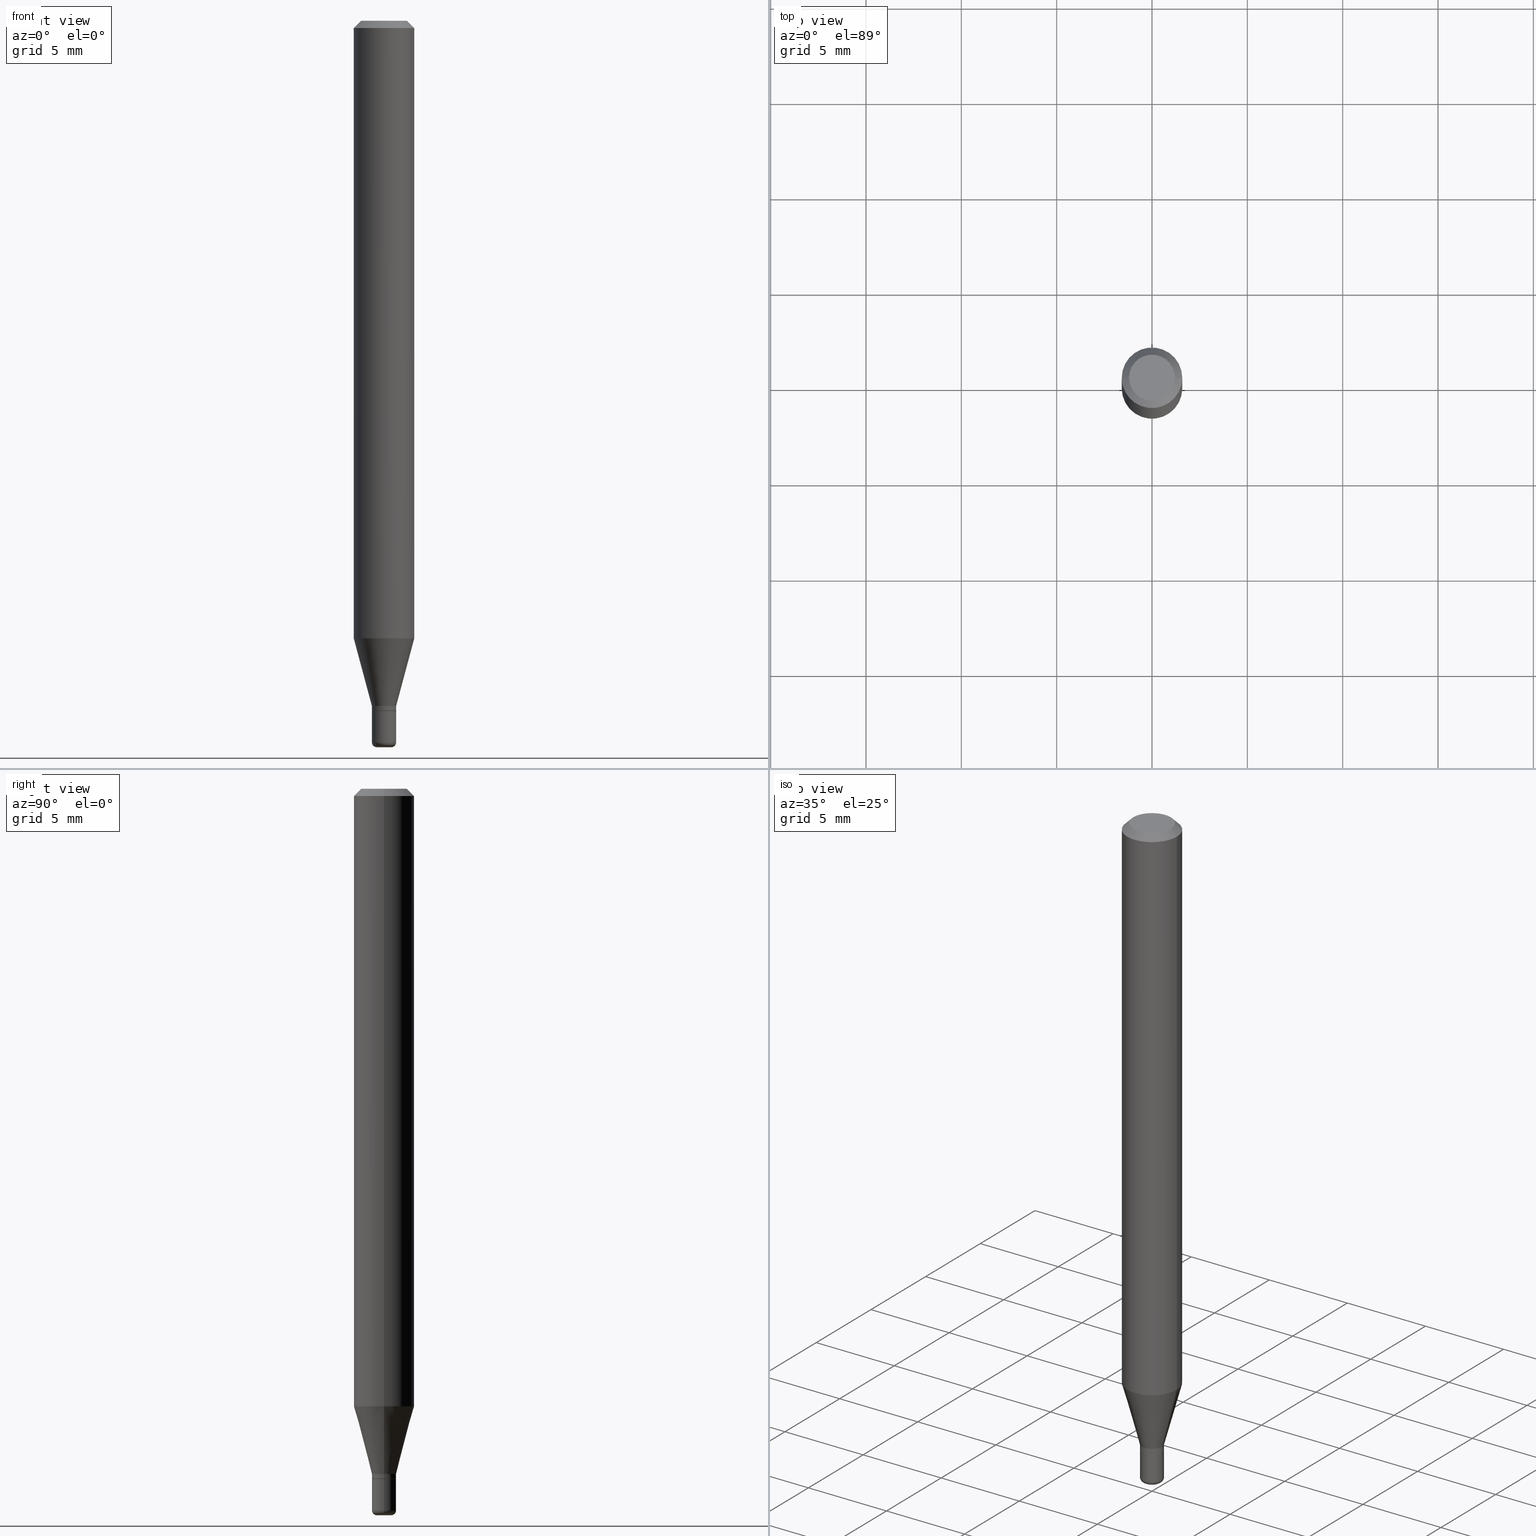
[diagram: canonical four-view strip — front | top / right | iso, engineering-drawing reading convention]
A machine part, canonical four-view strip (front | top / right | iso — engineering-drawing reading convention). The complete STEP part file that produces these views, byte-faithful:
ISO-10303-21;
HEADER;
FILE_DESCRIPTION (( 'STEP AP203' ),
    '1' );
FILE_NAME ('09008.STEP',
    '2024-02-29T21:14:19',
    ( '' ),
    ( '' ),
    'SwSTEP 2.0',
    'SolidWorks 2023',
    '' );
FILE_SCHEMA (( 'CONFIG_CONTROL_DESIGN' ));
ENDSEC;

DATA;
#1 = CC_DESIGN_APPROVAL ( #365, ( #337 ) ) ;
#2 = ORIENTED_EDGE ( 'NONE', *, *, #251, .T. ) ;
#3 = PERSON_AND_ORGANIZATION ( #484, #341 ) ;
#4 = VERTEX_POINT ( 'NONE', #347 ) ;
#5 = APPROVAL_DATE_TIME ( #298, #365 ) ;
#6 = CC_DESIGN_PERSON_AND_ORGANIZATION_ASSIGNMENT ( #444, #239, ( #450 ) ) ;
#7 = PRODUCT_DEFINITION_FORMATION_WITH_SPECIFIED_SOURCE ( 'ANY', '', #450, .NOT_KNOWN. ) ;
#8 = APPROVAL_ROLE ( '' ) ;
#9 = EDGE_CURVE ( 'NONE', #269, #255, #355, .T. ) ;
#10 = FACE_OUTER_BOUND ( 'NONE', #116, .T. ) ;
#11 = CIRCLE ( 'NONE', #481, 0.06250000000000000000 ) ;
#12 = APPROVAL_STATUS ( 'not_yet_approved' ) ;
#13 = PLANE ( 'NONE',  #240 ) ;
#14 = VERTEX_POINT ( 'NONE', #441 ) ;
#15 = PERSON_AND_ORGANIZATION ( #484, #341 ) ;
#16 = DIRECTION ( 'NONE',  ( 1.000000000000000000, -6.982962677686265922E-15, 4.876176775795935232E-29 ) ) ;
#17 = ORIENTED_EDGE ( 'NONE', *, *, #315, .T. ) ;
#18 = APPROVAL_ROLE ( '' ) ;
#19 = LINE ( 'NONE', #129, #404 ) ;
#20 = VERTEX_POINT ( 'NONE', #42 ) ;
#21 = EDGE_CURVE ( 'NONE', #20, #296, #406, .T. ) ;
#22 = DIRECTION ( 'NONE',  ( -2.445468806185136597E-29, 3.491481338843145583E-15, 1.000000000000000000 ) ) ;
#23 = CARTESIAN_POINT ( 'NONE',  ( 3.460338360751968441E-29, -4.940446094463050737E-15, -1.415000000000000036 ) ) ;
#24 = AXIS2_PLACEMENT_3D ( 'NONE', #495, #470, #349 ) ;
#25 = DIRECTION ( 'NONE',  ( -2.445468806185136597E-29, 3.491481338843145583E-15, 1.000000000000000000 ) ) ;
#26 = EDGE_LOOP ( 'NONE', ( #414, #110 ) ) ;
#27 = DIRECTION ( 'NONE',  ( 1.000000000000000000, -6.982962677686269866E-15, 4.883557194083113462E-29 ) ) ;
#28 = DIRECTION ( 'NONE',  ( 1.000000000000000000, -6.982962677686266711E-15, 4.852736867747365086E-29 ) ) ;
#29 = VERTEX_POINT ( 'NONE', #508 ) ;
#30 = CC_DESIGN_PERSON_AND_ORGANIZATION_ASSIGNMENT ( #15, #164, ( #7 ) ) ;
#31 = CARTESIAN_POINT ( 'NONE',  ( 0.06250000000000000000, -4.888073874380378612E-16, -0.01499999999999970281 ) ) ;
#32 = DIRECTION ( 'NONE',  ( -2.445468806185136597E-29, 3.491481338843145583E-15, 1.000000000000000000 ) ) ;
#33 = VERTEX_POINT ( 'NONE', #309 ) ;
#34 = DIRECTION ( 'NONE',  ( 0.7071067811865479058, -7.319954787623257623E-15, -0.7071067811865471286 ) ) ;
#35 = VECTOR ( 'NONE', #472, 39.37007874015748143 ) ;
#36 = EDGE_LOOP ( 'NONE', ( #518, #227 ) ) ;
#37 = ADVANCED_FACE ( 'NONE', ( #79 ), #159, .T. ) ;
#38 = APPLICATION_PROTOCOL_DEFINITION ( 'international standard', 'config_control_design', 1994, #150 ) ;
#39 = CARTESIAN_POINT ( 'NONE',  ( 3.484793048813820547E-29, -4.975360907851483175E-15, -1.425000000000000266 ) ) ;
#40 = ORIENTED_EDGE ( 'NONE', *, *, #9, .F. ) ;
#41 = MECHANICAL_CONTEXT ( 'NONE', #150, 'mechanical' ) ;
#42 = CARTESIAN_POINT ( 'NONE',  ( -0.06250000000000000000, -4.007717418978941084E-15, -1.275048094716166869 ) ) ;
#43 = ORIENTED_EDGE ( 'NONE', *, *, #377, .F. ) ;
#44 = APPLICATION_PROTOCOL_DEFINITION ( 'international standard', 'config_control_design', 1994, #506 ) ;
#45 = CIRCLE ( 'NONE', #442, 0.02499999999999994588 ) ;
#46 =( LENGTH_UNIT ( ) NAMED_UNIT ( * ) SI_UNIT ( $, .METRE. ) );
#47 = APPROVAL ( #331, 'UNSPECIFIED' ) ;
#48 =( NAMED_UNIT ( * ) PLANE_ANGLE_UNIT ( ) SI_UNIT ( $, .RADIAN. ) );
#49 = ADVANCED_FACE ( 'NONE', ( #512 ), #322, .T. ) ;
#50 = DIRECTION ( 'NONE',  ( 0.7071067811866199593, -2.468850131083015945E-15, 0.7071067811864750752 ) ) ;
#51 = TOROIDAL_SURFACE ( 'NONE', #380, 0.01500000000000000291, 0.009999999999999946432 ) ;
#52 = CARTESIAN_POINT ( 'NONE',  ( 3.668203209277632395E-31, -5.237222008264614861E-17, -0.01499999999999970281 ) ) ;
#53 = EDGE_LOOP ( 'NONE', ( #153, #196, #439, #345 ) ) ;
#54 = PERSON_AND_ORGANIZATION ( #484, #341 ) ;
#55 = CARTESIAN_POINT ( 'NONE',  ( 0.000000000000000000, 0.000000000000000000, 0.000000000000000000 ) ) ;
#56 = AXIS2_PLACEMENT_3D ( 'NONE', #236, #325, #485 ) ;
#57 = ORIENTED_EDGE ( 'NONE', *, *, #228, .T. ) ;
#58 = APPROVAL_DATE_TIME ( #491, #505 ) ;
#59 = DIRECTION ( 'NONE',  ( -2.445468806185136597E-29, 3.491481338843145583E-15, 1.000000000000000000 ) ) ;
#60 = EDGE_CURVE ( 'NONE', #348, #155, #420, .T. ) ;
#61 = CONICAL_SURFACE ( 'NONE', #343, 0.02499999999999998057, 0.2617993877991491858 ) ;
#62 = DIRECTION ( 'NONE',  ( 1.000000000000000000, -6.982962677686262766E-15, 0.000000000000000000 ) ) ;
#63 = CC_DESIGN_PERSON_AND_ORGANIZATION_ASSIGNMENT ( #367, #91, ( #337 ) ) ;
#64 = CARTESIAN_POINT ( 'NONE',  ( 3.483570314410727746E-29, -4.973615167182062460E-15, -1.424500000000000322 ) ) ;
#65 = ADVANCED_FACE ( 'NONE', ( #189 ), #313, .F. ) ;
#66 = DIRECTION ( 'NONE',  ( -2.445468806185136877E-29, 3.491481338843145188E-15, 1.000000000000000000 ) ) ;
#67 = DIRECTION ( 'NONE',  ( -2.445468806185136597E-29, 3.491481338843145583E-15, 1.000000000000000000 ) ) ;
#68 = CARTESIAN_POINT ( 'NONE',  ( 3.668203209277632395E-31, -5.237222008264614861E-17, -0.01499999999999970281 ) ) ;
#69 = ORIENTED_EDGE ( 'NONE', *, *, #245, .T. ) ;
#70 = CARTESIAN_POINT ( 'NONE',  ( -0.06250000000000000000, 4.440892098500626162E-16, -3.074334431409316114E-30 ) ) ;
#71 = ORIENTED_EDGE ( 'NONE', *, *, #288, .T. ) ;
#72 = ORIENTED_EDGE ( 'NONE', *, *, #361, .T. ) ;
#73 = AXIS2_PLACEMENT_3D ( 'NONE', #39, #469, #471 ) ;
#74 = DIRECTION ( 'NONE',  ( -0.7071067811865479058, 2.468850131082261005E-15, -0.7071067811865471286 ) ) ;
#75 = EDGE_LOOP ( 'NONE', ( #275, #443, #467, #473 ) ) ;
#76 = DIRECTION ( 'NONE',  ( 1.000000000000000000, -6.982962677686282488E-15, 0.000000000000000000 ) ) ;
#77 = DIMENSIONAL_EXPONENTS ( 1.000000000000000000, 0.000000000000000000, 0.000000000000000000, 0.000000000000000000, 0.000000000000000000, 0.000000000000000000, 0.000000000000000000 ) ;
#78 = AXIS2_PLACEMENT_3D ( 'NONE', #374, #332, #217 ) ;
#79 = FACE_OUTER_BOUND ( 'NONE', #53, .T. ) ;
#80 = CARTESIAN_POINT ( 'NONE',  ( 0.000000000000000000, 0.000000000000000000, 0.000000000000000000 ) ) ;
#81 = ORIENTED_EDGE ( 'NONE', *, *, #449, .T. ) ;
#82 = AXIS2_PLACEMENT_3D ( 'NONE', #68, #151, #389 ) ;
#83 = CARTESIAN_POINT ( 'NONE',  ( 3.668203209277704895E-29, -5.237222008264718177E-15, -1.500000000000000222 ) ) ;
#84 = EDGE_CURVE ( 'NONE', #348, #204, #113, .T. ) ;
#85 = CC_DESIGN_DATE_AND_TIME_ASSIGNMENT ( #489, #411, ( #130 ) ) ;
#86 = ORIENTED_EDGE ( 'NONE', *, *, #312, .F. ) ;
#87 = DIRECTION ( 'NONE',  ( -2.445468806185136877E-29, 3.491481338843145188E-15, 1.000000000000000000 ) ) ;
#88 = ADVANCED_FACE ( 'NONE', ( #515 ), #310, .T. ) ;
#89 = CARTESIAN_POINT ( 'NONE',  ( -0.06250000000000000000, -1.808000214605762576E-15, -0.01499999999999970281 ) ) ;
#90 = ORIENTED_EDGE ( 'NONE', *, *, #423, .T. ) ;
#91 = PERSON_AND_ORGANIZATION_ROLE ( 'creator' ) ;
#92 = CARTESIAN_POINT ( 'NONE',  ( -0.02499999999999997363, -4.795979483242037256E-15, -1.424500000000000322 ) ) ;
#93 = ORIENTED_EDGE ( 'NONE', *, *, #231, .F. ) ;
#94 = DATE_TIME_ROLE ( 'creation_date' ) ;
#95 = CARTESIAN_POINT ( 'NONE',  ( 0.04750000000000000749, -4.035134999187568762E-16, 2.731847993664288856E-16 ) ) ;
#96 = ORIENTED_EDGE ( 'NONE', *, *, #251, .F. ) ;
#97 = CARTESIAN_POINT ( 'NONE',  ( 3.118090342014177952E-29, -4.451806628829005278E-15, -1.275048094716166869 ) ) ;
#98 = DATE_AND_TIME ( #334, #333 ) ;
#99 = DIRECTION ( 'NONE',  ( -2.445468806185136597E-29, 3.491481338843145583E-15, 1.000000000000000000 ) ) ;
#100 = EDGE_CURVE ( 'NONE', #155, #348, #149, .T. ) ;
#101 = AXIS2_PLACEMENT_3D ( 'NONE', #319, #201, #405 ) ;
#102 = CARTESIAN_POINT ( 'NONE',  ( 0.02499999999999997363, -1.745740669421564705E-16, 1.219044193948982547E-30 ) ) ;
#103 = EDGE_CURVE ( 'NONE', #4, #29, #304, .T. ) ;
#104 = DIRECTION ( 'NONE',  ( 1.000000000000000000, -6.982962677686282488E-15, 0.000000000000000000 ) ) ;
#105 = CARTESIAN_POINT ( 'NONE',  ( 3.483570314410727746E-29, -4.973615167182062460E-15, -1.424500000000000322 ) ) ;
#106 = ORIENTED_EDGE ( 'NONE', *, *, #100, .F. ) ;
#107 = CC_DESIGN_APPROVAL ( #505, ( #130 ) ) ;
#108 = CARTESIAN_POINT ( 'NONE',  ( 0.02499999999999997710, -1.745740669421564952E-16, 1.219044193948982897E-30 ) ) ;
#109 = ORIENTED_EDGE ( 'NONE', *, *, #157, .T. ) ;
#110 = ORIENTED_EDGE ( 'NONE', *, *, #474, .F. ) ;
#111 = CARTESIAN_POINT ( 'NONE',  ( 3.484793048813820547E-29, -4.975360907851483175E-15, -1.425000000000000266 ) ) ;
#112 = EDGE_CURVE ( 'NONE', #33, #352, #131, .T. ) ;
#113 = LINE ( 'NONE', #438, #247 ) ;
#114 = FACE_OUTER_BOUND ( 'NONE', #279, .T. ) ;
#115 = VECTOR ( 'NONE', #34, 39.37007874015748143 ) ;
#116 = EDGE_LOOP ( 'NONE', ( #418, #69, #93, #401 ) ) ;
#117 = ORIENTED_EDGE ( 'NONE', *, *, #286, .T. ) ;
#118 = APPROVAL_PERSON_ORGANIZATION ( #3, #365, #18 ) ;
#119 = CARTESIAN_POINT ( 'NONE',  ( 3.484793048813820547E-29, -4.975360907851483175E-15, -1.425000000000000266 ) ) ;
#120 = DIRECTION ( 'NONE',  ( 1.000000000000000000, 0.000000000000000000, 0.000000000000000000 ) ) ;
#121 = ORIENTED_EDGE ( 'NONE', *, *, #125, .F. ) ;
#122 = DIRECTION ( 'NONE',  ( 7.105427357601001859E-15, 1.000000000000000000, -3.491481338843145583E-15 ) ) ;
#123 = CC_DESIGN_DATE_AND_TIME_ASSIGNMENT ( #135, #94, ( #337 ) ) ;
#124 =( CONVERSION_BASED_UNIT ( 'INCH', #397 ) LENGTH_UNIT ( ) NAMED_UNIT ( #77 ) );
#125 = EDGE_CURVE ( 'NONE', #33, #291, #422, .T. ) ;
#126 = DIRECTION ( 'NONE',  ( 1.000000000000000000, -6.982962677686266711E-15, 0.000000000000000000 ) ) ;
#127 = MANIFOLD_SOLID_BREP ( 'Body-Move/Copy2[2]', #494 ) ;
#128 = CYLINDRICAL_SURFACE ( 'NONE', #203, 0.02499999999999997710 ) ;
#129 = CARTESIAN_POINT ( 'NONE',  ( -0.02499999999999998057, -4.762810410523025533E-15, -1.415000000000000036 ) ) ;
#130 = SECURITY_CLASSIFICATION ( '', '', #451 ) ;
#131 = CIRCLE ( 'NONE', #78, 0.02449999999999996972 ) ;
#132 = CALENDAR_DATE ( 2024, 29, 2 ) ;
#133 = ORIENTED_EDGE ( 'NONE', *, *, #504, .F. ) ;
#134 = FACE_OUTER_BOUND ( 'NONE', #163, .T. ) ;
#135 = DATE_AND_TIME ( #258, #410 ) ;
#136 = ADVANCED_FACE ( 'NONE', ( #206 ), #462, .T. ) ;
#137 = CARTESIAN_POINT ( 'NONE',  ( 0.01500000000000000291, -5.307051635041582264E-15, -1.490000000000000213 ) ) ;
#138 = DIRECTION ( 'NONE',  ( 1.000000000000000000, -6.982962677686254878E-15, 0.000000000000000000 ) ) ;
#139 = ADVANCED_FACE ( 'NONE', ( #214 ), #447, .T. ) ;
#140 = CONICAL_SURFACE ( 'NONE', #215, 0.02449999999999996972, 0.7853981633975507526 ) ;
#141 = CYLINDRICAL_SURFACE ( 'NONE', #368, 0.06250000000000000000 ) ;
#142 = ORIENTED_EDGE ( 'NONE', *, *, #504, .T. ) ;
#143 = LINE ( 'NONE', #70, #208 ) ;
#144 = ORIENTED_EDGE ( 'NONE', *, *, #125, .T. ) ;
#145 = DIRECTION ( 'NONE',  ( -2.445468806185136877E-29, 3.491481338843145188E-15, 1.000000000000000000 ) ) ;
#146 = EDGE_LOOP ( 'NONE', ( #72, #142, #375, #224 ) ) ;
#147 = CIRCLE ( 'NONE', #351, 0.02499999999999998057 ) ;
#148 = CYLINDRICAL_SURFACE ( 'NONE', #476, 0.02499999999999997710 ) ;
#149 = CIRCLE ( 'NONE', #234, 0.04750000000000000749 ) ;
#150 = APPLICATION_CONTEXT ( 'configuration controlled 3d designs of mechanical parts and assemblies' ) ;
#151 = DIRECTION ( 'NONE',  ( 2.445468806185136597E-29, -3.491481338843145583E-15, -1.000000000000000000 ) ) ;
#152 = CARTESIAN_POINT ( 'NONE',  ( 0.02499999999999998057, -5.115020161405207405E-15, -1.415000000000000036 ) ) ;
#153 = ORIENTED_EDGE ( 'NONE', *, *, #231, .T. ) ;
#154 = DIRECTION ( 'NONE',  ( 2.445468806185136597E-29, -3.491481338843145583E-15, -1.000000000000000000 ) ) ;
#155 = VERTEX_POINT ( 'NONE', #95 ) ;
#156 = DIRECTION ( 'NONE',  ( -2.445468806185136597E-29, 3.491481338843145583E-15, 1.000000000000000000 ) ) ;
#157 = EDGE_CURVE ( 'NONE', #392, #204, #478, .T. ) ;
#158 = DIRECTION ( 'NONE',  ( -2.445468806185136597E-29, 3.491481338843145583E-15, 1.000000000000000000 ) ) ;
#159 = CYLINDRICAL_SURFACE ( 'NONE', #56, 0.06250000000000000000 ) ;
#160 = PLANE ( 'NONE',  #280 ) ;
#161 = UNCERTAINTY_MEASURE_WITH_UNIT (LENGTH_MEASURE( 1.000000000000000082E-05 ), #124, 'distance_accuracy_value', 'NONE');
#162 =( NAMED_UNIT ( * ) SI_UNIT ( $, .STERADIAN. ) SOLID_ANGLE_UNIT ( ) );
#163 = EDGE_LOOP ( 'NONE', ( #133, #17, #71, #43 ) ) ;
#164 = PERSON_AND_ORGANIZATION_ROLE ( 'creator' ) ;
#165 = ADVANCED_FACE ( 'NONE', ( #10 ), #61, .T. ) ;
#166 = CIRCLE ( 'NONE', #262, 0.01500000000000000465 ) ;
#167 = EDGE_LOOP ( 'NONE', ( #185, #316, #330, #277 ) ) ;
#168 = VERTEX_POINT ( 'NONE', #487 ) ;
#169 = DIRECTION ( 'NONE',  ( -2.445468806185136597E-29, 3.491481338843145583E-15, 1.000000000000000000 ) ) ;
#170 = CIRCLE ( 'NONE', #225, 0.02499999999999998057 ) ;
#171 = PERSON_AND_ORGANIZATION_ROLE ( 'classification_officer' ) ;
#172 = AXIS2_PLACEMENT_3D ( 'NONE', #200, #32, #230 ) ;
#173 = CARTESIAN_POINT ( 'NONE',  ( 3.582686580359766038E-29, -5.359686688179453325E-15, -1.500000000000000222 ) ) ;
#174 = EDGE_LOOP ( 'NONE', ( #492, #435, #372, #96 ) ) ;
#175 = PERSON_AND_ORGANIZATION_ROLE ( 'design_supplier' ) ;
#176 = CARTESIAN_POINT ( 'NONE',  ( 3.668203209277632395E-31, -5.237222008264614861E-17, -0.01499999999999970281 ) ) ;
#177 = APPROVAL_DATE_TIME ( #98, #47 ) ;
#178 = CARTESIAN_POINT ( 'NONE',  ( 0.02449999999999996972, -5.146443493454796836E-15, -1.425000000000000266 ) ) ;
#179 = DIRECTION ( 'NONE',  ( -2.445468806185136597E-29, 3.491481338843145583E-15, 1.000000000000000000 ) ) ;
#180 = AXIS2_PLACEMENT_3D ( 'NONE', #195, #398, #28 ) ;
#181 = PRODUCT_DEFINITION_SHAPE ( 'NONE', 'NONE',  #337 ) ;
#182 = ADVANCED_BREP_SHAPE_REPRESENTATION ( '09008', ( #302, #127, #221 ), #510 ) ;
#183 = CIRCLE ( 'NONE', #249, 0.02499999999999994588 ) ;
#184 = CARTESIAN_POINT ( 'NONE',  ( 0.000000000000000000, 0.000000000000000000, 0.000000000000000000 ) ) ;
#185 = ORIENTED_EDGE ( 'NONE', *, *, #488, .F. ) ;
#186 = CIRCLE ( 'NONE', #446, 0.02449999999999996972 ) ;
#187 = CARTESIAN_POINT ( 'NONE',  ( 3.643748521215853910E-29, -5.202307194876288105E-15, -1.490000000000000213 ) ) ;
#188 = CARTESIAN_POINT ( 'NONE',  ( 0.06250000000000000000, -4.364351673553916694E-16, 3.047610484872459871E-30 ) ) ;
#189 = FACE_OUTER_BOUND ( 'NONE', #36, .T. ) ;
#190 = ADVANCED_FACE ( 'NONE', ( #134 ), #128, .T. ) ;
#191 = DIRECTION ( 'NONE',  ( 1.000000000000000000, -6.982962677686261977E-15, 0.000000000000000000 ) ) ;
#192 = ORIENTED_EDGE ( 'NONE', *, *, #488, .T. ) ;
#193 = VECTOR ( 'NONE', #448, 39.37007874015748143 ) ;
#194 = DIRECTION ( 'NONE',  ( -2.445468806185136877E-29, 3.491481338843145188E-15, 1.000000000000000000 ) ) ;
#195 = CARTESIAN_POINT ( 'NONE',  ( -6.680649051745406845E-45, 9.538196290434862081E-31, 2.731847993664263218E-16 ) ) ;
#196 = ORIENTED_EDGE ( 'NONE', *, *, #381, .T. ) ;
#197 = FACE_OUTER_BOUND ( 'NONE', #295, .T. ) ;
#198 = DIRECTION ( 'NONE',  ( -1.000000000000000000, 6.982962677686266711E-15, 0.000000000000000000 ) ) ;
#199 = CARTESIAN_POINT ( 'NONE',  ( 3.316907271900976589E-16, 0.04750000000000000749, -2.925296391183627249E-17 ) ) ;
#200 = CARTESIAN_POINT ( 'NONE',  ( 3.118090342014177952E-29, -4.451806628829005278E-15, -1.275048094716166869 ) ) ;
#201 = DIRECTION ( 'NONE',  ( -2.445468806185136597E-29, 3.491481338843145583E-15, 1.000000000000000000 ) ) ;
#202 = LOCAL_TIME ( 16, 14, 19.00000000000000000, #292 ) ;
#203 = AXIS2_PLACEMENT_3D ( 'NONE', #454, #210, #370 ) ;
#204 = VERTEX_POINT ( 'NONE', #89 ) ;
#205 = VERTEX_POINT ( 'NONE', #261 ) ;
#206 = FACE_OUTER_BOUND ( 'NONE', #167, .T. ) ;
#207 = CIRCLE ( 'NONE', #387, 0.009999999999999944697 ) ;
#208 = VECTOR ( 'NONE', #66, 39.37007874015748143 ) ;
#209 = CALENDAR_DATE ( 2024, 29, 2 ) ;
#210 = DIRECTION ( 'NONE',  ( -2.445468806185136597E-29, 3.491481338843145583E-15, 1.000000000000000000 ) ) ;
#211 = PERSON_AND_ORGANIZATION ( #484, #341 ) ;
#212 = DIRECTION ( 'NONE',  ( 1.000000000000000000, -6.982962677686269866E-15, 4.883557194083113462E-29 ) ) ;
#213 = ORIENTED_EDGE ( 'NONE', *, *, #84, .F. ) ;
#214 = FACE_OUTER_BOUND ( 'NONE', #75, .T. ) ;
#215 = AXIS2_PLACEMENT_3D ( 'NONE', #482, #156, #76 ) ;
#216 = CIRCLE ( 'NONE', #320, 0.009999999999999944697 ) ;
#217 = DIRECTION ( 'NONE',  ( 1.000000000000000000, -6.982962677686282488E-15, 0.000000000000000000 ) ) ;
#218 = ADVANCED_FACE ( 'NONE', ( #297 ), #293, .T. ) ;
#219 = LINE ( 'NONE', #305, #115 ) ;
#220 = CARTESIAN_POINT ( 'NONE',  ( 0.000000000000000000, 0.000000000000000000, 0.000000000000000000 ) ) ;
#221 = AXIS2_PLACEMENT_3D ( 'NONE', #80, #400, #120 ) ;
#222 = LINE ( 'NONE', #108, #376 ) ;
#223 = ORIENTED_EDGE ( 'NONE', *, *, #361, .F. ) ;
#224 = ORIENTED_EDGE ( 'NONE', *, *, #288, .F. ) ;
#225 = AXIS2_PLACEMENT_3D ( 'NONE', #299, #338, #327 ) ;
#226 = CARTESIAN_POINT ( 'NONE',  ( -0.02449999999999996972, -4.798628710416148457E-15, -1.425000000000000266 ) ) ;
#227 = ORIENTED_EDGE ( 'NONE', *, *, #399, .F. ) ;
#228 = EDGE_CURVE ( 'NONE', #4, #14, #216, .T. ) ;
#229 = FACE_OUTER_BOUND ( 'NONE', #317, .T. ) ;
#230 = DIRECTION ( 'NONE',  ( 1.000000000000000000, -6.982962677686262766E-15, 0.000000000000000000 ) ) ;
#231 = EDGE_CURVE ( 'NONE', #296, #20, #11, .T. ) ;
#232 = LOCAL_TIME ( 16, 14, 19.00000000000000000, #373 ) ;
#233 = CARTESIAN_POINT ( 'NONE',  ( -0.02449999999999996972, -4.801277937590258869E-15, -1.425000000000000266 ) ) ;
#234 = AXIS2_PLACEMENT_3D ( 'NONE', #356, #158, #259 ) ;
#235 = CONICAL_SURFACE ( 'NONE', #24, 0.02499999999999998057, 0.2617993877991491858 ) ;
#236 = CARTESIAN_POINT ( 'NONE',  ( 0.000000000000000000, 0.000000000000000000, 0.000000000000000000 ) ) ;
#237 = LINE ( 'NONE', #440, #464 ) ;
#238 = VERTEX_POINT ( 'NONE', #92 ) ;
#239 = PERSON_AND_ORGANIZATION_ROLE ( 'design_owner' ) ;
#240 = AXIS2_PLACEMENT_3D ( 'NONE', #173, #329, #457 ) ;
#241 = VECTOR ( 'NONE', #194, 39.37007874015748143 ) ;
#242 = ORIENTED_EDGE ( 'NONE', *, *, #21, .F. ) ;
#243 = CIRCLE ( 'NONE', #378, 0.02499999999999997363 ) ;
#244 = CIRCLE ( 'NONE', #425, 0.02500000000000000139 ) ;
#245 = EDGE_CURVE ( 'NONE', #433, #20, #19, .T. ) ;
#246 = EDGE_CURVE ( 'NONE', #168, #433, #170, .T. ) ;
#247 = VECTOR ( 'NONE', #74, 39.37007874015748143 ) ;
#248 = DIRECTION ( 'NONE',  ( 1.000000000000000000, -6.982962677686274599E-15, 0.000000000000000000 ) ) ;
#249 = AXIS2_PLACEMENT_3D ( 'NONE', #308, #346, #385 ) ;
#250 = SHAPE_DEFINITION_REPRESENTATION ( #181, #182 ) ;
#251 = EDGE_CURVE ( 'NONE', #204, #392, #461, .T. ) ;
#252 = CARTESIAN_POINT ( 'NONE',  ( -0.02500000000000000139, -4.911198367423860436E-15, -1.425000000000000266 ) ) ;
#253 = CIRCLE ( 'NONE', #403, 0.02499999999999997363 ) ;
#254 = AXIS2_PLACEMENT_3D ( 'NONE', #52, #99, #379 ) ;
#255 = VERTEX_POINT ( 'NONE', #252 ) ;
#256 = COORDINATED_UNIVERSAL_TIME_OFFSET ( 5, 0, .BEHIND. ) ;
#257 = CARTESIAN_POINT ( 'NONE',  ( 3.643748521215853910E-29, -5.202307194876288105E-15, -1.490000000000000213 ) ) ;
#258 = CALENDAR_DATE ( 2024, 29, 2 ) ;
#259 = DIRECTION ( 'NONE',  ( 1.000000000000000000, -6.982962677686266711E-15, 4.852736867747365086E-29 ) ) ;
#260 = APPROVAL_ROLE ( '' ) ;
#261 = CARTESIAN_POINT ( 'NONE',  ( -0.02499999999999994588, -4.911198367423860436E-15, -1.490000000000000213 ) ) ;
#262 = AXIS2_PLACEMENT_3D ( 'NONE', #83, #475, #285 ) ;
#263 = ADVANCED_FACE ( 'NONE', ( #371 ), #13, .F. ) ;
#264 = DIRECTION ( 'NONE',  ( 1.000000000000000000, -6.982962677686265922E-15, 4.876176775795935793E-29 ) ) ;
#265 = ORIENTED_EDGE ( 'NONE', *, *, #384, .F. ) ;
#266 = CARTESIAN_POINT ( 'NONE',  ( 3.484793048813820547E-29, -4.975360907851483175E-15, -1.425000000000000266 ) ) ;
#267 = CLOSED_SHELL ( 'NONE', ( #139, #218, #417, #136, #342, #263 ) ) ;
#268 = DIRECTION ( 'NONE',  ( 2.438088387897960049E-29, -3.491481338843145188E-15, -1.000000000000000000 ) ) ;
#269 = VERTEX_POINT ( 'NONE', #490 ) ;
#270 = ORIENTED_EDGE ( 'NONE', *, *, #426, .T. ) ;
#271 = DIRECTION ( 'NONE',  ( -2.445468806185136597E-29, 3.491481338843145583E-15, 1.000000000000000000 ) ) ;
#272 = EDGE_LOOP ( 'NONE', ( #458, #81, #223, #121 ) ) ;
#273 = ORIENTED_EDGE ( 'NONE', *, *, #449, .F. ) ;
#274 = DIRECTION ( 'NONE',  ( -2.445468806185136597E-29, 3.491481338843145583E-15, 1.000000000000000000 ) ) ;
#275 = ORIENTED_EDGE ( 'NONE', *, *, #103, .T. ) ;
#276 = ORIENTED_EDGE ( 'NONE', *, *, #100, .T. ) ;
#277 = ORIENTED_EDGE ( 'NONE', *, *, #340, .F. ) ;
#278 = ORIENTED_EDGE ( 'NONE', *, *, #315, .F. ) ;
#279 = EDGE_LOOP ( 'NONE', ( #408, #276 ) ) ;
#280 = AXIS2_PLACEMENT_3D ( 'NONE', #199, #354, #402 ) ;
#281 = AXIS2_PLACEMENT_3D ( 'NONE', #413, #169, #493 ) ;
#282 = DIRECTION ( 'NONE',  ( -2.445468806185136877E-29, 3.491481338843145188E-15, 1.000000000000000000 ) ) ;
#283 = DIRECTION ( 'NONE',  ( -2.445468806185136597E-29, 3.491481338843145583E-15, 1.000000000000000000 ) ) ;
#284 = ORIENTED_EDGE ( 'NONE', *, *, #60, .F. ) ;
#285 = DIRECTION ( 'NONE',  ( 1.000000000000000000, -6.982962677686265922E-15, 0.000000000000000000 ) ) ;
#286 = EDGE_CURVE ( 'NONE', #155, #392, #219, .T. ) ;
#287 = LINE ( 'NONE', #233, #35 ) ;
#288 = EDGE_CURVE ( 'NONE', #291, #168, #222, .T. ) ;
#289 = CARTESIAN_POINT ( 'NONE',  ( 0.000000000000000000, 0.000000000000000000, 0.000000000000000000 ) ) ;
#290 = DIRECTION ( 'NONE',  ( -2.445468806185136597E-29, 3.491481338843145583E-15, 1.000000000000000000 ) ) ;
#291 = VERTEX_POINT ( 'NONE', #468 ) ;
#292 = COORDINATED_UNIVERSAL_TIME_OFFSET ( 5, 0, .BEHIND. ) ;
#293 = CYLINDRICAL_SURFACE ( 'NONE', #511, 0.02499999999999997363 ) ;
#294 = LOCAL_TIME ( 16, 14, 19.00000000000000000, #366 ) ;
#295 = EDGE_LOOP ( 'NONE', ( #273, #436, #144, #278 ) ) ;
#296 = VERTEX_POINT ( 'NONE', #463 ) ;
#297 = FACE_OUTER_BOUND ( 'NONE', #307, .T. ) ;
#298 = DATE_AND_TIME ( #132, #294 ) ;
#299 = CARTESIAN_POINT ( 'NONE',  ( 3.460338360751968441E-29, -4.940446094463050737E-15, -1.415000000000000036 ) ) ;
#300 = EDGE_CURVE ( 'NONE', #296, #392, #466, .T. ) ;
#301 = DIRECTION ( 'NONE',  ( -2.445468806185136597E-29, 3.491481338843145583E-15, 1.000000000000000000 ) ) ;
#302 = MANIFOLD_SOLID_BREP ( 'Body-Move/Copy2[1]', #267 ) ;
#303 = CC_DESIGN_SECURITY_CLASSIFICATION ( #130, ( #7 ) ) ;
#304 = CIRCLE ( 'NONE', #281, 0.01500000000000000465 ) ;
#305 = CARTESIAN_POINT ( 'NONE',  ( 0.06250000000000000000, -4.811533449433669144E-16, -0.01499999999999970281 ) ) ;
#306 = FACE_OUTER_BOUND ( 'NONE', #146, .T. ) ;
#307 = EDGE_LOOP ( 'NONE', ( #90, #192, #40, #265 ) ) ;
#308 = CARTESIAN_POINT ( 'NONE',  ( 3.643748521215853910E-29, -5.202307194876288105E-15, -1.490000000000000213 ) ) ;
#309 = CARTESIAN_POINT ( 'NONE',  ( 0.02449999999999996972, -5.146443493454796836E-15, -1.425000000000000266 ) ) ;
#310 = CONICAL_SURFACE ( 'NONE', #364, 0.06250000000000000000, 0.7853981633974488341 ) ;
#311 = DIRECTION ( 'NONE',  ( -2.445468806185136597E-29, 3.491481338843145583E-15, 1.000000000000000000 ) ) ;
#312 = EDGE_CURVE ( 'NONE', #205, #14, #183, .T. ) ;
#313 = PLANE ( 'NONE',  #73 ) ;
#314 = CARTESIAN_POINT ( 'NONE',  ( -0.02499999999999998057, -4.385263914750983308E-15, -1.415000000000000036 ) ) ;
#315 = EDGE_CURVE ( 'NONE', #238, #291, #243, .T. ) ;
#316 = ORIENTED_EDGE ( 'NONE', *, *, #312, .T. ) ;
#317 = EDGE_LOOP ( 'NONE', ( #480, #432 ) ) ;
#318 = EDGE_LOOP ( 'NONE', ( #501, #350, #57, #86 ) ) ;
#319 = CARTESIAN_POINT ( 'NONE',  ( 3.484793048813820547E-29, -4.975360907851483175E-15, -1.425000000000000266 ) ) ;
#320 = AXIS2_PLACEMENT_3D ( 'NONE', #137, #460, #248 ) ;
#321 = DIRECTION ( 'NONE',  ( 1.000000000000000000, -6.982962677686269866E-15, 0.000000000000000000 ) ) ;
#322 = CONICAL_SURFACE ( 'NONE', #82, 0.06250000000000000000, 0.7853981633974488341 ) ;
#323 = CARTESIAN_POINT ( 'NONE',  ( -0.02499999999999997363, 1.776356839400248591E-16, -1.229733772563725079E-30 ) ) ;
#324 = AXIS2_PLACEMENT_3D ( 'NONE', #386, #268, #465 ) ;
#325 = DIRECTION ( 'NONE',  ( -2.445468806185136597E-29, 3.491481338843145583E-15, 1.000000000000000000 ) ) ;
#326 = ADVANCED_FACE ( 'NONE', ( #339 ), #235, .T. ) ;
#327 = DIRECTION ( 'NONE',  ( 1.000000000000000000, -6.982962677686260400E-15, 0.000000000000000000 ) ) ;
#328 = APPROVAL_STATUS ( 'not_yet_approved' ) ;
#329 = DIRECTION ( 'NONE',  ( -2.438088387897960049E-29, 3.491481338843145188E-15, 1.000000000000000000 ) ) ;
#330 = ORIENTED_EDGE ( 'NONE', *, *, #384, .T. ) ;
#331 = APPROVAL_STATUS ( 'not_yet_approved' ) ;
#332 = DIRECTION ( 'NONE',  ( -2.445468806185136597E-29, 3.491481338843145583E-15, 1.000000000000000000 ) ) ;
#333 = LOCAL_TIME ( 16, 14, 19.00000000000000000, #256 ) ;
#334 = CALENDAR_DATE ( 2024, 29, 2 ) ;
#335 = PRODUCT_RELATED_PRODUCT_CATEGORY ( 'detail', '', ( #450 ) ) ;
#336 = CARTESIAN_POINT ( 'NONE',  ( 3.460338360751968441E-29, -4.940446094463050737E-15, -1.415000000000000036 ) ) ;
#337 = PRODUCT_DEFINITION ( 'UNKNOWN', '', #7, #357 ) ;
#338 = DIRECTION ( 'NONE',  ( -2.445468806185136597E-29, 3.491481338843145583E-15, 1.000000000000000000 ) ) ;
#339 = FACE_OUTER_BOUND ( 'NONE', #497, .T. ) ;
#340 = EDGE_CURVE ( 'NONE', #255, #269, #244, .T. ) ;
#341 = ORGANIZATION ( 'UNSPECIFIED', 'UNSPECIFIED', '' ) ;
#342 = ADVANCED_FACE ( 'NONE', ( #509 ), #51, .T. ) ;
#343 = AXIS2_PLACEMENT_3D ( 'NONE', #336, #290, #416 ) ;
#344 = DIRECTION ( 'NONE',  ( 1.000000000000000000, -6.982962677686260400E-15, 0.000000000000000000 ) ) ;
#345 = ORIENTED_EDGE ( 'NONE', *, *, #300, .F. ) ;
#346 = DIRECTION ( 'NONE',  ( -2.445468806185136597E-29, 3.491481338843145583E-15, 1.000000000000000000 ) ) ;
#347 = CARTESIAN_POINT ( 'NONE',  ( 0.01500000000000000465, -5.341966448430012335E-15, -1.500000000000000222 ) ) ;
#348 = VERTEX_POINT ( 'NONE', #388 ) ;
#349 = DIRECTION ( 'NONE',  ( 1.000000000000000000, -6.982962677686260400E-15, 0.000000000000000000 ) ) ;
#350 = ORIENTED_EDGE ( 'NONE', *, *, #474, .T. ) ;
#351 = AXIS2_PLACEMENT_3D ( 'NONE', #23, #390, #344 ) ;
#352 = VERTEX_POINT ( 'NONE', #226 ) ;
#353 = ORIENTED_EDGE ( 'NONE', *, *, #377, .T. ) ;
#354 = DIRECTION ( 'NONE',  ( 2.438088387897960049E-29, -3.491481338843145188E-15, -1.000000000000000000 ) ) ;
#355 = CIRCLE ( 'NONE', #383, 0.02500000000000000139 ) ;
#356 = CARTESIAN_POINT ( 'NONE',  ( -6.680649051745406845E-45, 9.538196290434862081E-31, 2.731847993664263218E-16 ) ) ;
#357 = DESIGN_CONTEXT ( 'detailed design', #506, 'design' ) ;
#358 = DIRECTION ( 'NONE',  ( -1.000000000000000000, 7.105427357600964782E-15, 0.000000000000000000 ) ) ;
#359 = ORIENTED_EDGE ( 'NONE', *, *, #286, .F. ) ;
#360 = EDGE_LOOP ( 'NONE', ( #106, #117, #109, #213 ) ) ;
#361 = EDGE_CURVE ( 'NONE', #291, #238, #253, .T. ) ;
#362 = CC_DESIGN_PERSON_AND_ORGANIZATION_ASSIGNMENT ( #421, #171, ( #130 ) ) ;
#363 = CC_DESIGN_APPROVAL ( #47, ( #7 ) ) ;
#364 = AXIS2_PLACEMENT_3D ( 'NONE', #394, #154, #198 ) ;
#365 = APPROVAL ( #12, 'UNSPECIFIED' ) ;
#366 = COORDINATED_UNIVERSAL_TIME_OFFSET ( 5, 0, .BEHIND. ) ;
#367 = PERSON_AND_ORGANIZATION ( #484, #341 ) ;
#368 = AXIS2_PLACEMENT_3D ( 'NONE', #220, #498, #437 ) ;
#369 = CC_DESIGN_PERSON_AND_ORGANIZATION_ASSIGNMENT ( #211, #175, ( #7 ) ) ;
#370 = DIRECTION ( 'NONE',  ( 1.000000000000000000, -6.982962677686265922E-15, 4.876176775795935793E-29 ) ) ;
#371 = FACE_OUTER_BOUND ( 'NONE', #26, .T. ) ;
#372 = ORIENTED_EDGE ( 'NONE', *, *, #300, .T. ) ;
#373 = COORDINATED_UNIVERSAL_TIME_OFFSET ( 5, 0, .BEHIND. ) ;
#374 = CARTESIAN_POINT ( 'NONE',  ( 3.484793048813820547E-29, -4.975360907851483175E-15, -1.425000000000000266 ) ) ;
#375 = ORIENTED_EDGE ( 'NONE', *, *, #246, .F. ) ;
#376 = VECTOR ( 'NONE', #434, 39.37007874015748143 ) ;
#377 = EDGE_CURVE ( 'NONE', #433, #168, #147, .T. ) ;
#378 = AXIS2_PLACEMENT_3D ( 'NONE', #105, #271, #191 ) ;
#379 = DIRECTION ( 'NONE',  ( 1.000000000000000000, -6.982962677686266711E-15, 0.000000000000000000 ) ) ;
#380 = AXIS2_PLACEMENT_3D ( 'NONE', #187, #301, #27 ) ;
#381 = EDGE_CURVE ( 'NONE', #20, #204, #143, .T. ) ;
#382 = DIRECTION ( 'NONE',  ( -2.445468806185136597E-29, 3.491481338843145583E-15, 1.000000000000000000 ) ) ;
#383 = AXIS2_PLACEMENT_3D ( 'NONE', #119, #283, #391 ) ;
#384 = EDGE_CURVE ( 'NONE', #14, #269, #507, .T. ) ;
#385 = DIRECTION ( 'NONE',  ( 1.000000000000000000, -6.982962677686269866E-15, 0.000000000000000000 ) ) ;
#386 = CARTESIAN_POINT ( 'NONE',  ( 1.745740669421915009E-16, 0.02499999999999502620, -1.425000000000000266 ) ) ;
#387 = AXIS2_PLACEMENT_3D ( 'NONE', #445, #122, #358 ) ;
#388 = CARTESIAN_POINT ( 'NONE',  ( -0.04750000000000000749, 3.578768372314221353E-16, 2.731847993664239060E-16 ) ) ;
#389 = DIRECTION ( 'NONE',  ( -1.000000000000000000, 6.982962677686266711E-15, 0.000000000000000000 ) ) ;
#390 = DIRECTION ( 'NONE',  ( -2.445468806185136597E-29, 3.491481338843145583E-15, 1.000000000000000000 ) ) ;
#391 = DIRECTION ( 'NONE',  ( 1.000000000000000000, -6.982962677686254878E-15, 0.000000000000000000 ) ) ;
#392 = VERTEX_POINT ( 'NONE', #31 ) ;
#393 = FACE_OUTER_BOUND ( 'NONE', #174, .T. ) ;
#394 = CARTESIAN_POINT ( 'NONE',  ( 3.668203209277632395E-31, -5.237222008264614861E-17, -0.01499999999999970281 ) ) ;
#395 = APPROVAL_PERSON_ORGANIZATION ( #54, #47, #8 ) ;
#396 = ADVANCED_FACE ( 'NONE', ( #306 ), #148, .T. ) ;
#397 = LENGTH_MEASURE_WITH_UNIT ( LENGTH_MEASURE( 0.02539999999999999897 ), #46 );
#398 = DIRECTION ( 'NONE',  ( -2.445468806185136597E-29, 3.491481338843145583E-15, 1.000000000000000000 ) ) ;
#399 = EDGE_CURVE ( 'NONE', #352, #33, #186, .T. ) ;
#400 = DIRECTION ( 'NONE',  ( 0.000000000000000000, 0.000000000000000000, 1.000000000000000000 ) ) ;
#401 = ORIENTED_EDGE ( 'NONE', *, *, #426, .F. ) ;
#402 = DIRECTION ( 'NONE',  ( -1.000000000000000000, 6.982962677686265922E-15, -4.876176775795935793E-29 ) ) ;
#403 = AXIS2_PLACEMENT_3D ( 'NONE', #64, #67, #502 ) ;
#404 = VECTOR ( 'NONE', #409, 39.37007874015748143 ) ;
#405 = DIRECTION ( 'NONE',  ( 1.000000000000000000, -6.982962677686282488E-15, 0.000000000000000000 ) ) ;
#406 = CIRCLE ( 'NONE', #172, 0.06250000000000000000 ) ;
#407 = ADVANCED_FACE ( 'NONE', ( #393 ), #141, .T. ) ;
#408 = ORIENTED_EDGE ( 'NONE', *, *, #60, .T. ) ;
#409 = DIRECTION ( 'NONE',  ( -0.2588190451025205174, 5.211531920934544731E-15, 0.9659258262890684232 ) ) ;
#410 = LOCAL_TIME ( 16, 14, 19.00000000000000000, #415 ) ;
#411 = DATE_TIME_ROLE ( 'classification_date' ) ;
#412 = VECTOR ( 'NONE', #50, 39.37007874015748143 ) ;
#413 = CARTESIAN_POINT ( 'NONE',  ( 3.668203209277704895E-29, -5.237222008264718177E-15, -1.500000000000000222 ) ) ;
#414 = ORIENTED_EDGE ( 'NONE', *, *, #103, .F. ) ;
#415 = COORDINATED_UNIVERSAL_TIME_OFFSET ( 5, 0, .BEHIND. ) ;
#416 = DIRECTION ( 'NONE',  ( 1.000000000000000000, -6.982962677686260400E-15, 0.000000000000000000 ) ) ;
#417 = ADVANCED_FACE ( 'NONE', ( #229 ), #427, .F. ) ;
#418 = ORIENTED_EDGE ( 'NONE', *, *, #246, .T. ) ;
#419 = EDGE_LOOP ( 'NONE', ( #359, #284, #477, #2 ) ) ;
#420 = CIRCLE ( 'NONE', #180, 0.04750000000000000749 ) ;
#421 = PERSON_AND_ORGANIZATION ( #484, #341 ) ;
#422 = LINE ( 'NONE', #178, #412 ) ;
#423 = EDGE_CURVE ( 'NONE', #14, #205, #45, .T. ) ;
#424 = DIRECTION ( 'NONE',  ( -2.445468806185136597E-29, 3.491481338843145583E-15, 1.000000000000000000 ) ) ;
#425 = AXIS2_PLACEMENT_3D ( 'NONE', #266, #428, #138 ) ;
#426 = EDGE_CURVE ( 'NONE', #168, #296, #514, .T. ) ;
#427 = PLANE ( 'NONE',  #324 ) ;
#428 = DIRECTION ( 'NONE',  ( -2.445468806185136597E-29, 3.491481338843145583E-15, 1.000000000000000000 ) ) ;
#429 = CARTESIAN_POINT ( 'NONE',  ( 3.643748521215853910E-29, -5.202307194876288105E-15, -1.490000000000000213 ) ) ;
#430 = APPROVAL_PERSON_ORGANIZATION ( #486, #505, #260 ) ;
#431 = AXIS2_PLACEMENT_3D ( 'NONE', #257, #22, #212 ) ;
#432 = ORIENTED_EDGE ( 'NONE', *, *, #340, .T. ) ;
#433 = VERTEX_POINT ( 'NONE', #314 ) ;
#434 = DIRECTION ( 'NONE',  ( -2.445468806185136877E-29, 3.491481338843145188E-15, 1.000000000000000000 ) ) ;
#435 = ORIENTED_EDGE ( 'NONE', *, *, #21, .T. ) ;
#436 = ORIENTED_EDGE ( 'NONE', *, *, #399, .T. ) ;
#437 = DIRECTION ( 'NONE',  ( 1.000000000000000000, -6.982962677686266711E-15, 4.876176775795935793E-29 ) ) ;
#438 = CARTESIAN_POINT ( 'NONE',  ( -0.06250000000000000000, 3.840629472727455270E-16, -0.01499999999999970281 ) ) ;
#439 = ORIENTED_EDGE ( 'NONE', *, *, #157, .F. ) ;
#440 = CARTESIAN_POINT ( 'NONE',  ( -0.02499999999999997710, 1.776356839400248838E-16, -1.229733772563725430E-30 ) ) ;
#441 = CARTESIAN_POINT ( 'NONE',  ( 0.02499999999999994588, -5.376881261818443984E-15, -1.490000000000000213 ) ) ;
#442 = AXIS2_PLACEMENT_3D ( 'NONE', #429, #25, #321 ) ;
#443 = ORIENTED_EDGE ( 'NONE', *, *, #513, .T. ) ;
#444 = PERSON_AND_ORGANIZATION ( #484, #341 ) ;
#445 = CARTESIAN_POINT ( 'NONE',  ( -0.01500000000000000291, -5.095725784512272983E-15, -1.490000000000000213 ) ) ;
#446 = AXIS2_PLACEMENT_3D ( 'NONE', #111, #274, #104 ) ;
#447 = TOROIDAL_SURFACE ( 'NONE', #431, 0.01500000000000000291, 0.009999999999999946432 ) ;
#448 = DIRECTION ( 'NONE',  ( 0.2588190451025205174, 1.565188264969628476E-15, 0.9659258262890684232 ) ) ;
#449 = EDGE_CURVE ( 'NONE', #352, #238, #287, .T. ) ;
#450 = PRODUCT ( '09008', '09008', '', ( #41 ) ) ;
#451 = SECURITY_CLASSIFICATION_LEVEL ( 'unclassified' ) ;
#452 = DIRECTION ( 'NONE',  ( 1.000000000000000000, -6.982962677686265922E-15, 4.876176775795935232E-29 ) ) ;
#453 = CALENDAR_DATE ( 2024, 29, 2 ) ;
#454 = CARTESIAN_POINT ( 'NONE',  ( 0.000000000000000000, 0.000000000000000000, 0.000000000000000000 ) ) ;
#455 = CONICAL_SURFACE ( 'NONE', #101, 0.02449999999999996972, 0.7853981633975507526 ) ;
#456 = ADVANCED_FACE ( 'NONE', ( #197 ), #455, .T. ) ;
#457 = DIRECTION ( 'NONE',  ( 1.000000000000000000, -6.982962677686265922E-15, 4.876176775795935793E-29 ) ) ;
#458 = ORIENTED_EDGE ( 'NONE', *, *, #112, .T. ) ;
#459 = ADVANCED_FACE ( 'NONE', ( #114 ), #160, .F. ) ;
#460 = DIRECTION ( 'NONE',  ( -6.982962677686266711E-15, -1.000000000000000000, 3.491481338843145583E-15 ) ) ;
#461 = CIRCLE ( 'NONE', #517, 0.06250000000000000000 ) ;
#462 = CYLINDRICAL_SURFACE ( 'NONE', #500, 0.02499999999999997363 ) ;
#463 = CARTESIAN_POINT ( 'NONE',  ( 0.06250000000000000000, -4.888241796184395369E-15, -1.275048094716166869 ) ) ;
#464 = VECTOR ( 'NONE', #87, 39.37007874015748143 ) ;
#465 = DIRECTION ( 'NONE',  ( -1.000000000000000000, 6.982962677686265922E-15, -4.876176775795935793E-29 ) ) ;
#466 = LINE ( 'NONE', #188, #241 ) ;
#467 = ORIENTED_EDGE ( 'NONE', *, *, #423, .F. ) ;
#468 = CARTESIAN_POINT ( 'NONE',  ( 0.02499999999999997363, -5.148189234124219128E-15, -1.424500000000000322 ) ) ;
#469 = DIRECTION ( 'NONE',  ( -2.438088387897960049E-29, 3.491481338843145188E-15, 1.000000000000000000 ) ) ;
#470 = DIRECTION ( 'NONE',  ( -2.445468806185136597E-29, 3.491481338843145583E-15, 1.000000000000000000 ) ) ;
#471 = DIRECTION ( 'NONE',  ( 1.000000000000000000, -6.982962677686265922E-15, 4.876176775795935793E-29 ) ) ;
#472 = DIRECTION ( 'NONE',  ( -0.7071067811866199593, 7.493145998870616062E-15, 0.7071067811864750752 ) ) ;
#473 = ORIENTED_EDGE ( 'NONE', *, *, #228, .F. ) ;
#474 = EDGE_CURVE ( 'NONE', #29, #4, #166, .T. ) ;
#475 = DIRECTION ( 'NONE',  ( -2.445468806185136597E-29, 3.491481338843145583E-15, 1.000000000000000000 ) ) ;
#476 = AXIS2_PLACEMENT_3D ( 'NONE', #184, #311, #264 ) ;
#477 = ORIENTED_EDGE ( 'NONE', *, *, #84, .T. ) ;
#478 = CIRCLE ( 'NONE', #254, 0.06250000000000000000 ) ;
#479 = FACE_OUTER_BOUND ( 'NONE', #272, .T. ) ;
#480 = ORIENTED_EDGE ( 'NONE', *, *, #9, .T. ) ;
#481 = AXIS2_PLACEMENT_3D ( 'NONE', #97, #424, #62 ) ;
#482 = CARTESIAN_POINT ( 'NONE',  ( 3.484793048813820547E-29, -4.975360907851483175E-15, -1.425000000000000266 ) ) ;
#483 = VECTOR ( 'NONE', #145, 39.37007874015748143 ) ;
#484 = PERSON ( 'UNSPECIFIED', 'UNSPECIFIED', 'UNSPECIFIED', ('UNSPECIFIED'), ('UNSPECIFIED'), ('UNSPECIFIED') ) ;
#485 = DIRECTION ( 'NONE',  ( 1.000000000000000000, -6.982962677686266711E-15, 4.876176775795935793E-29 ) ) ;
#486 = PERSON_AND_ORGANIZATION ( #484, #341 ) ;
#487 = CARTESIAN_POINT ( 'NONE',  ( 0.02499999999999998057, -5.115020161405207405E-15, -1.415000000000000036 ) ) ;
#488 = EDGE_CURVE ( 'NONE', #205, #255, #516, .T. ) ;
#489 = DATE_AND_TIME ( #453, #232 ) ;
#490 = CARTESIAN_POINT ( 'NONE',  ( 0.02500000000000000139, -5.149934974793639843E-15, -1.425000000000000266 ) ) ;
#491 = DATE_AND_TIME ( #209, #202 ) ;
#492 = ORIENTED_EDGE ( 'NONE', *, *, #381, .F. ) ;
#493 = DIRECTION ( 'NONE',  ( 1.000000000000000000, -6.982962677686265922E-15, 0.000000000000000000 ) ) ;
#494 = CLOSED_SHELL ( 'NONE', ( #396, #496, #49, #37, #165, #326, #407, #88, #459, #65, #456, #190 ) ) ;
#495 = CARTESIAN_POINT ( 'NONE',  ( 3.460338360751968441E-29, -4.940446094463050737E-15, -1.415000000000000036 ) ) ;
#496 = ADVANCED_FACE ( 'NONE', ( #479 ), #140, .T. ) ;
#497 = EDGE_LOOP ( 'NONE', ( #503, #353, #270, #242 ) ) ;
#498 = DIRECTION ( 'NONE',  ( -2.445468806185136597E-29, 3.491481338843145583E-15, 1.000000000000000000 ) ) ;
#499 = VECTOR ( 'NONE', #282, 39.37007874015748143 ) ;
#500 = AXIS2_PLACEMENT_3D ( 'NONE', #289, #59, #452 ) ;
#501 = ORIENTED_EDGE ( 'NONE', *, *, #513, .F. ) ;
#502 = DIRECTION ( 'NONE',  ( 1.000000000000000000, -6.982962677686261977E-15, 0.000000000000000000 ) ) ;
#503 = ORIENTED_EDGE ( 'NONE', *, *, #245, .F. ) ;
#504 = EDGE_CURVE ( 'NONE', #238, #433, #237, .T. ) ;
#505 = APPROVAL ( #328, 'UNSPECIFIED' ) ;
#506 = APPLICATION_CONTEXT ( 'configuration controlled 3d designs of mechanical parts and assemblies' ) ;
#507 = LINE ( 'NONE', #102, #483 ) ;
#508 = CARTESIAN_POINT ( 'NONE',  ( -0.01500000000000000465, -5.077656054418483766E-15, -1.500000000000000222 ) ) ;
#509 = FACE_OUTER_BOUND ( 'NONE', #318, .T. ) ;
#510 =( GEOMETRIC_REPRESENTATION_CONTEXT ( 3 ) GLOBAL_UNCERTAINTY_ASSIGNED_CONTEXT ( ( #161 ) ) GLOBAL_UNIT_ASSIGNED_CONTEXT ( ( #124, #48, #162 ) ) REPRESENTATION_CONTEXT ( 'NONE', 'WORKASPACE' ) );
#511 = AXIS2_PLACEMENT_3D ( 'NONE', #55, #179, #16 ) ;
#512 = FACE_OUTER_BOUND ( 'NONE', #360, .T. ) ;
#513 = EDGE_CURVE ( 'NONE', #29, #205, #207, .T. ) ;
#514 = LINE ( 'NONE', #152, #193 ) ;
#515 = FACE_OUTER_BOUND ( 'NONE', #419, .T. ) ;
#516 = LINE ( 'NONE', #323, #499 ) ;
#517 = AXIS2_PLACEMENT_3D ( 'NONE', #176, #382, #126 ) ;
#518 = ORIENTED_EDGE ( 'NONE', *, *, #112, .F. ) ;
ENDSEC;
END-ISO-10303-21;
